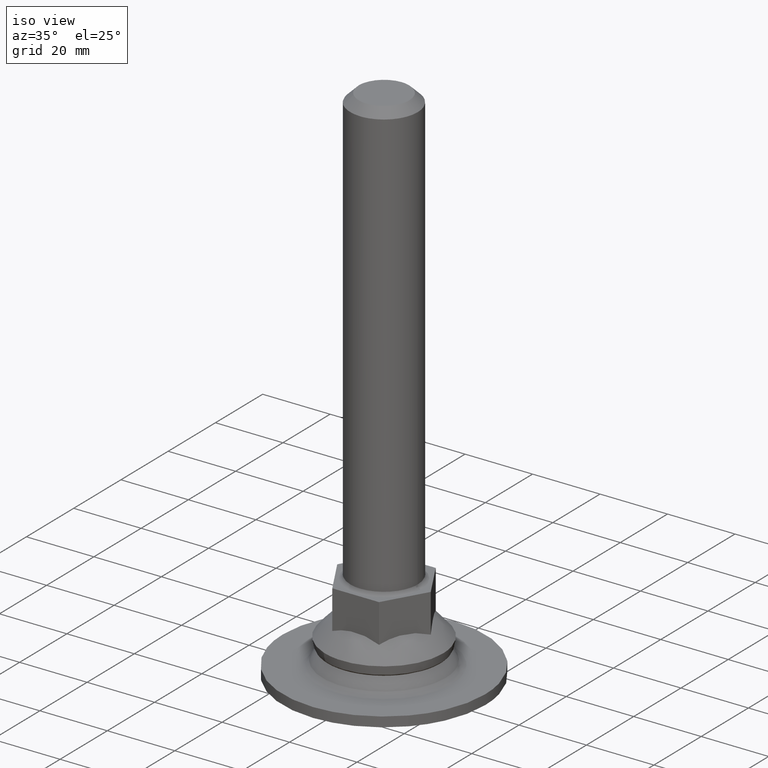
[diagram: clean part render]
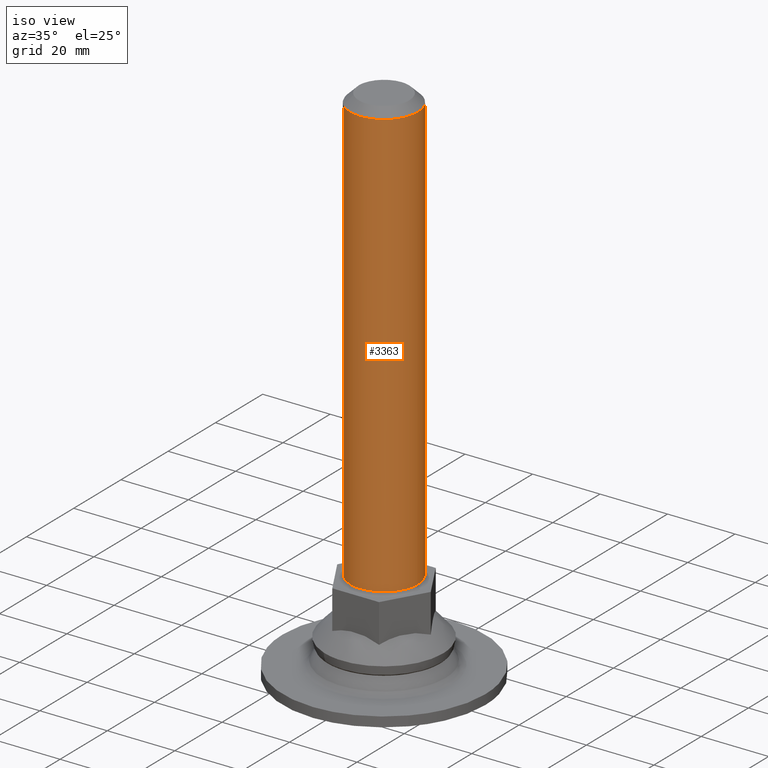
[diagram: same view with one face highlighted and labeled with its STEP entity id]
A machine part, iso view. The second image highlights one B-rep face of the part: STEP entity #3363.
In plain terms, the highlighted face is a freeform B-spline surface patch.
Its self-contained STEP definition (entity closure, byte-faithful):
#3072=CARTESIAN_POINT('',(-7.132504689479257,-7.009092837511521,153.499999907495010));
#3073=VERTEX_POINT('',#3072);
#3074=CARTESIAN_POINT('',(-7.220018164367479,-6.918912141638169,153.500000000000000));
#3075=VERTEX_POINT('',#3074);
#3076=CARTESIAN_POINT('',(-7.132504689479257,-7.009092837511521,153.499999907495010));
#3077=CARTESIAN_POINT('',(-7.220018164367479,-6.918912141638169,153.500000000000000));
#3078=QUASI_UNIFORM_CURVE('',1,(#3076,#3077),.UNSPECIFIED.,.F.,.U.);
#3079=EDGE_CURVE('',#3073,#3075,#3078,.T.);
#3155=CARTESIAN_POINT('',(-0.000001504865297,-9.999999999999886,153.500000000000000));
#3156=VERTEX_POINT('',#3155);
#3157=CARTESIAN_POINT('',(-0.000001504865297,-9.999999999999886,153.500000000000000));
#3158=CARTESIAN_POINT('',(-0.785879408029216,-10.000197839252470,153.499999989807890));
#3159=CARTESIAN_POINT('',(-1.902515499416748,-9.867631710830167,153.499999975324810));
#3160=CARTESIAN_POINT('',(-3.730468237702498,-9.331441592237892,153.499999951619200));
#3161=CARTESIAN_POINT('',(-5.415651283052421,-8.511312523242593,153.499999929758500));
#3162=CARTESIAN_POINT('',(-6.610769002761608,-7.540192815101914,153.499999914265290));
#3163=CARTESIAN_POINT('',(-7.132504689479257,-7.009092837511521,153.499999907495010));
#3164=B_SPLINE_CURVE_WITH_KNOTS('',3,(#3157,#3158,#3159,#3160,#3161,#3162,#3163),.UNSPECIFIED.,.F.,.U.,(4,1,1,1,4),(0.000000036517164,2.357576361089468,3.350240397072653,5.707806664202183,7.941297643147786),.UNSPECIFIED.);
#3165=EDGE_CURVE('',#3156,#3073,#3164,.T.);
#3167=CARTESIAN_POINT('',(10.0,0.0,153.500000000000000));
#3168=VERTEX_POINT('',#3167);
#3169=CARTESIAN_POINT('',(10.0,0.0,153.500000000000000));
#3170=CARTESIAN_POINT('',(10.000432439964680,-0.981811638885219,153.500000000000200));
#3171=CARTESIAN_POINT('',(9.787410789771695,-2.413241927264191,153.499999999999890));
#3172=CARTESIAN_POINT('',(9.061267004399380,-4.330356243422107,153.500000000000200));
#3173=CARTESIAN_POINT('',(8.344932839193850,-5.576969117874480,153.500000000000200));
#3174=CARTESIAN_POINT('',(7.379606035871525,-6.798367438633963,153.499999999999400));
#3175=CARTESIAN_POINT('',(6.190250219694081,-7.930878733575006,153.500000000000600));
#3176=CARTESIAN_POINT('',(4.701896445666927,-8.886135515263495,153.500000000000000));
#3177=CARTESIAN_POINT('',(2.617658466415834,-9.749547548224086,153.499999999999200));
#3178=CARTESIAN_POINT('',(1.063662248304764,-10.000654071658790,153.500000000000600));
#3179=CARTESIAN_POINT('',(-0.000001504865297,-9.999999999999886,153.500000000000000));
#3180=B_SPLINE_CURVE_WITH_KNOTS('',3,(#3169,#3170,#3171,#3172,#3173,#3174,#3175,#3176,#3177,#3178,#3179),.UNSPECIFIED.,.F.,.U.,(4,1,1,1,1,1,1,1,4),(0.000000136299233,2.945256937906008,4.295180327503370,6.135968173745631,7.240445599818809,8.958503984507562,11.044729597111299,12.517364499513359,15.708062676928360),.UNSPECIFIED.);
#3181=EDGE_CURVE('',#3168,#3156,#3180,.T.);
#3183=CARTESIAN_POINT('',(7.220018164367497,6.918912141638185,153.500000000000000));
#3184=VERTEX_POINT('',#3183);
#3185=CARTESIAN_POINT('',(7.220018164367497,6.918912141638185,153.500000000000000));
#3186=CARTESIAN_POINT('',(7.605540288226766,6.516669046787335,153.499999999999890));
#3187=CARTESIAN_POINT('',(8.334224118958209,5.616470517503791,153.500000000000000));
#3188=CARTESIAN_POINT('',(9.227436683905669,4.010076106348380,153.500000000000110));
#3189=CARTESIAN_POINT('',(9.849683252685727,2.109201322869945,153.499999999999690));
#3190=CARTESIAN_POINT('',(10.000125625195629,0.716360639625384,153.499999999999890));
#3191=CARTESIAN_POINT('',(10.0,0.0,153.500000000000000));
#3192=B_SPLINE_CURVE_WITH_KNOTS('',3,(#3185,#3186,#3187,#3188,#3189,#3190,#3191),.UNSPECIFIED.,.F.,.U.,(4,1,1,1,4),(0.000000035369748,1.671486162426620,3.462390656019670,5.492034627384177,7.641096965284715),.UNSPECIFIED.);
#3193=EDGE_CURVE('',#3184,#3168,#3192,.T.);
#3228=CARTESIAN_POINT('',(-7.220017958133953,-6.918911813589126,26.999999999754149));
#3229=VERTEX_POINT('',#3228);
#3240=CARTESIAN_POINT('',(-7.220018164367479,-6.918912141638169,153.500000000000000));
#3241=CARTESIAN_POINT('',(-7.220017958133953,-6.918911813589126,26.999999999754149));
#3242=QUASI_UNIFORM_CURVE('',1,(#3240,#3241),.UNSPECIFIED.,.F.,.U.);
#3243=EDGE_CURVE('',#3075,#3229,#3242,.T.);
#3249=CARTESIAN_POINT('',(7.220017958133953,6.918911813589126,26.999999999754131));
#3250=VERTEX_POINT('',#3249);
#3251=CARTESIAN_POINT('',(7.220018164367497,6.918912141638185,153.500000000000000));
#3252=CARTESIAN_POINT('',(7.220017958133953,6.918911813589126,26.999999999754131));
#3253=QUASI_UNIFORM_CURVE('',1,(#3251,#3252),.UNSPECIFIED.,.F.,.U.);
#3254=EDGE_CURVE('',#3184,#3250,#3253,.T.);
#3292=CARTESIAN_POINT('',(7.220017876694405,6.918911898572862,156.662500000043510));
#3293=CARTESIAN_POINT('',(14.138929775267268,-0.301105978121544,156.662500000043560));
#3294=CARTESIAN_POINT('',(6.918911898572862,-7.220017876694405,156.662500000043510));
#3295=CARTESIAN_POINT('',(-0.301105978121544,-14.138929775267268,156.662500000043560));
#3296=CARTESIAN_POINT('',(-7.220017876694405,-6.918911898572862,156.662500000043510));
#3297=CARTESIAN_POINT('',(7.220017876694405,6.918911898572862,23.758437498215841));
#3298=CARTESIAN_POINT('',(14.138929775267268,-0.301105978121544,23.758437498215848));
#3299=CARTESIAN_POINT('',(6.918911898572862,-7.220017876694405,23.758437498215841));
#3300=CARTESIAN_POINT('',(-0.301105978121544,-14.138929775267268,23.758437498215848));
#3301=CARTESIAN_POINT('',(-7.220017876694405,-6.918911898572862,23.758437498215841));
#3309=(BOUNDED_SURFACE()B_SPLINE_SURFACE(2,1,((#3292,#3297),(#3293,#3298),(#3294,#3299),(#3295,#3300),(#3296,#3301)),.UNSPECIFIED.,.F.,.F.,.U.)B_SPLINE_SURFACE_WITH_KNOTS((3,2,3),(2,2),(0.0,16.568542494923800,33.137084989847587),(0.0,132.904062501827700),.UNSPECIFIED.)GEOMETRIC_REPRESENTATION_ITEM()RATIONAL_B_SPLINE_SURFACE(((1.0,1.0),(0.707106781186548,0.707106781186548),(1.0,1.0),(0.707106781186548,0.707106781186548),(1.0,1.0)))REPRESENTATION_ITEM('')SURFACE());
#3310=CARTESIAN_POINT('',(-0.062732521595197,-9.999803229600785,26.999999999130200));
#3311=VERTEX_POINT('',#3310);
#3312=CARTESIAN_POINT('',(-7.220017958133953,-6.918911813589126,26.999999999754149));
#3313=CARTESIAN_POINT('',(-6.700933559386475,-7.460825264064400,26.999999999708820));
#3314=CARTESIAN_POINT('',(-5.830147599764573,-8.185221587886778,26.999999999632490));
#3315=CARTESIAN_POINT('',(-4.349012867620256,-9.043694654332736,26.999999999503490));
#3316=CARTESIAN_POINT('',(-2.562402117560928,-9.760525872140999,26.999999999347502));
#3317=CARTESIAN_POINT('',(-1.021595911416334,-9.994164244633526,26.999999999213632));
#3318=CARTESIAN_POINT('',(-0.062732521595197,-9.999803229600785,26.999999999130200));
#3319=B_SPLINE_CURVE_WITH_KNOTS('',3,(#3312,#3313,#3314,#3315,#3316,#3317,#3318),.UNSPECIFIED.,.F.,.U.,(4,1,1,1,4),(0.000000037971036,2.251191092905299,3.376791671893565,5.127708208859851,8.004231149310776),.UNSPECIFIED.);
#3320=EDGE_CURVE('',#3229,#3311,#3319,.T.);
#3321=ORIENTED_EDGE('',*,*,#3320,.T.);
#3322=CARTESIAN_POINT('',(9.999210442037699,-0.125660398870342,26.999999998260421));
#3323=VERTEX_POINT('',#3322);
#3324=CARTESIAN_POINT('',(-0.062732521595197,-9.999803229600785,26.999999999130200));
#3325=CARTESIAN_POINT('',(0.752106427296280,-10.005092627400300,26.999999999059291));
#3326=CARTESIAN_POINT('',(2.382957422109223,-9.814886790153661,26.999999998917630));
#3327=CARTESIAN_POINT('',(4.341878787157714,-9.076700948980296,26.999999998747469));
#3328=CARTESIAN_POINT('',(5.978138067660990,-8.073622805686544,26.999999998605979));
#3329=CARTESIAN_POINT('',(7.338480779756412,-6.892980193462254,26.999999998487731));
#3330=CARTESIAN_POINT('',(8.360496857880422,-5.560287129870143,26.999999998400419));
#3331=CARTESIAN_POINT('',(9.144846505595456,-4.129499550828990,26.999999998331990));
#3332=CARTESIAN_POINT('',(9.780608741194454,-2.445297413689985,26.999999998278749));
#3333=CARTESIAN_POINT('',(9.988718728504351,-0.981199194986086,26.999999998260598));
#3334=CARTESIAN_POINT('',(9.999210442037699,-0.125660398870342,26.999999998260421));
#3335=B_SPLINE_CURVE_WITH_KNOTS('',3,(#3324,#3325,#3326,#3327,#3328,#3329,#3330,#3331,#3332,#3333,#3334),.UNSPECIFIED.,.F.,.U.,(4,1,1,1,1,1,1,1,4),(0.000000123385252,2.444547251802533,4.889110147686699,6.233624605909171,8.189201477142582,10.267109825075639,11.244938360264269,13.078373598885600,15.645129875828960),.UNSPECIFIED.);
#3336=EDGE_CURVE('',#3311,#3323,#3335,.T.);
#3337=ORIENTED_EDGE('',*,*,#3336,.T.);
#3338=CARTESIAN_POINT('',(9.999999999999998,0.0,27.0));
#3339=VERTEX_POINT('',#3338);
#3340=CARTESIAN_POINT('',(9.999210442037699,-0.125660398870342,26.999999998260421));
#3341=CARTESIAN_POINT('',(9.999999999999998,0.0,27.0));
#3342=QUASI_UNIFORM_CURVE('',1,(#3340,#3341),.UNSPECIFIED.,.F.,.U.);
#3343=EDGE_CURVE('',#3323,#3339,#3342,.T.);
#3344=ORIENTED_EDGE('',*,*,#3343,.T.);
#3345=CARTESIAN_POINT('',(9.999999999999998,0.0,27.0));
#3346=CARTESIAN_POINT('',(10.000090761068490,0.676555935044103,26.999999999999609));
#3347=CARTESIAN_POINT('',(9.854084750894955,2.109233174024132,26.999999999986080));
#3348=CARTESIAN_POINT('',(9.231100926214650,4.012536034694662,26.999999999930640));
#3349=CARTESIAN_POINT('',(8.309059823288887,5.647501853649287,26.999999999849809));
#3350=CARTESIAN_POINT('',(7.605543783106219,6.516670751754793,26.999999999787839));
#3351=CARTESIAN_POINT('',(7.220017958133953,6.918911813589126,26.999999999754131));
#3352=B_SPLINE_CURVE_WITH_KNOTS('',3,(#3345,#3346,#3347,#3348,#3349,#3350,#3351),.UNSPECIFIED.,.F.,.U.,(4,1,1,1,4),(0.000000035374661,2.029667470199874,4.298115849287029,5.969610652483428,7.641096727517226),.UNSPECIFIED.);
#3353=EDGE_CURVE('',#3339,#3250,#3352,.T.);
#3354=ORIENTED_EDGE('',*,*,#3353,.T.);
#3355=ORIENTED_EDGE('',*,*,#3254,.F.);
#3356=ORIENTED_EDGE('',*,*,#3193,.T.);
#3357=ORIENTED_EDGE('',*,*,#3181,.T.);
#3358=ORIENTED_EDGE('',*,*,#3165,.T.);
#3359=ORIENTED_EDGE('',*,*,#3079,.T.);
#3360=ORIENTED_EDGE('',*,*,#3243,.T.);
#3361=EDGE_LOOP('',(#3321,#3337,#3344,#3354,#3355,#3356,#3357,#3358,#3359,#3360));
#3362=FACE_OUTER_BOUND('',#3361,.T.);
#3363=ADVANCED_FACE('',(#3362),#3309,.T.);